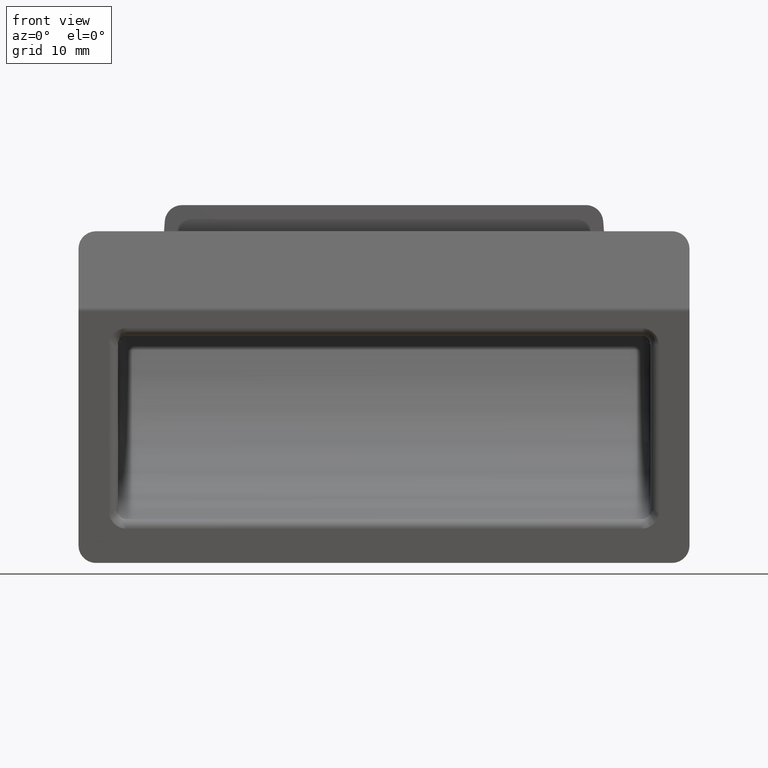
[diagram: clean part render]
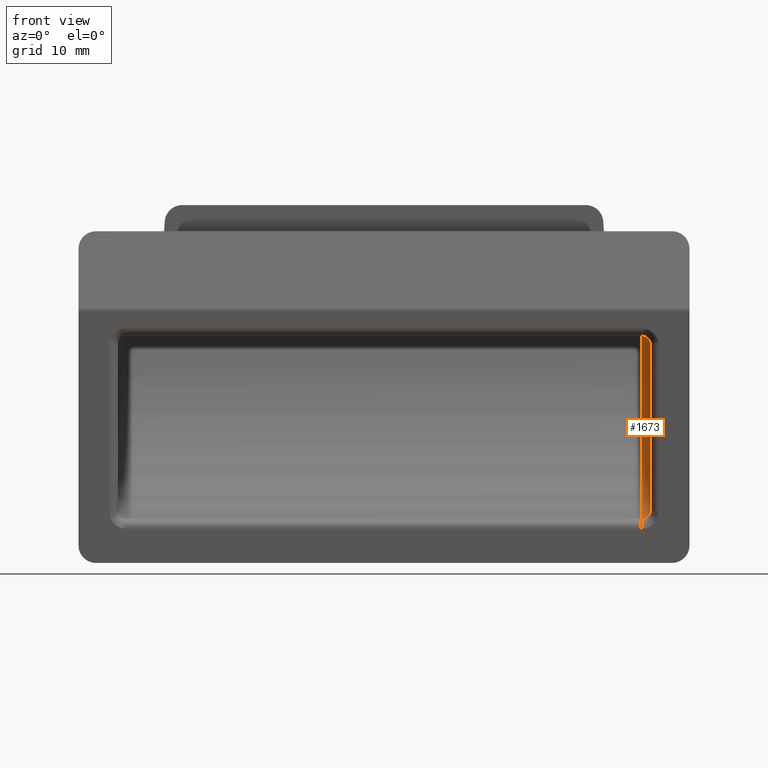
[diagram: same view with one face highlighted and labeled with its STEP entity id]
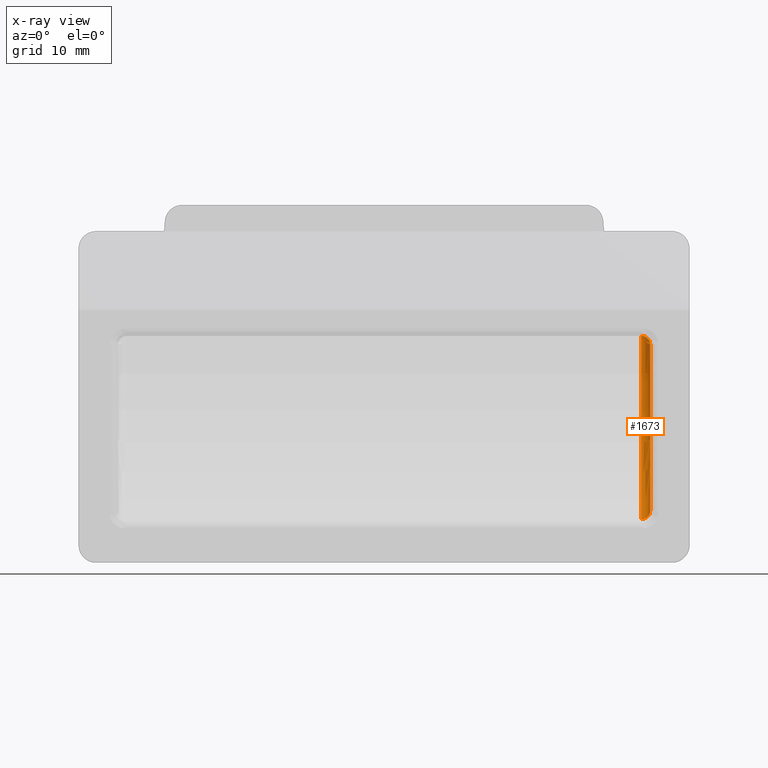
[diagram: x-ray of the same camera — body ghosted, the highlighted face saturated]
A machine part, front view. The second image highlights one B-rep face of the part: STEP entity #1673.
The next image is the same camera in x-ray: the body ghosted, the highlighted face saturated — about 0% of this face is hidden behind the body in this view.
In plain terms, the highlighted toroidal blend (fillet) surface has major radius 28.3282 mm and minor (blend) radius 1 mm.
Its self-contained STEP definition (entity closure, byte-faithful):
#174 = CIRCLE ( 'NONE', #3350, 28.32816273254529800 ) ;
#246 = CARTESIAN_POINT ( 'NONE',  ( 30.50000000000000000, 13.51908140067302200, 5.250000000000000000 ) ) ;
#332 = VERTEX_POINT ( 'NONE', #493 ) ;
#346 = ORIENTED_EDGE ( 'NONE', *, *, #3284, .T. ) ;
#369 = ORIENTED_EDGE ( 'NONE', *, *, #1932, .F. ) ;
#370 = CARTESIAN_POINT ( 'NONE',  ( 30.01020090900654200, -0.03367101190482255800, -14.62018252972382900 ) ) ;
#428 = VERTEX_POINT ( 'NONE', #1266 ) ;
#493 = CARTESIAN_POINT ( 'NONE',  ( 29.50000000000000000, 14.71560498968656100, 6.242930651828519500 ) ) ;
#507 = VERTEX_POINT ( 'NONE', #2026 ) ;
#642 = AXIS2_PLACEMENT_3D ( 'NONE', #2917, #2652, #2156 ) ;
#651 = CARTESIAN_POINT ( 'NONE',  ( 30.30413376355081200, -0.1017712667486603800, -14.35855678462644700 ) ) ;
#729 = FACE_OUTER_BOUND ( 'NONE', #2768, .T. ) ;
#791 = CARTESIAN_POINT ( 'NONE',  ( 29.67627605569255100, 14.70236770115303500, 6.237742102043643700 ) ) ;
#862 = CIRCLE ( 'NONE', #3018, 29.32816273254530200 ) ;
#907 = CARTESIAN_POINT ( 'NONE',  ( 30.47447254613235000, -0.1933309952458673000, -14.00880693099823300 ) ) ;
#909 = EDGE_CURVE ( 'NONE', #332, #1884, #2765, .T. ) ;
#1042 = CARTESIAN_POINT ( 'NONE',  ( 29.90627875288464900, 14.61901895251523900, 6.166800404046995300 ) ) ;
#1108 = EDGE_CURVE ( 'NONE', #1699, #428, #174, .T. ) ;
#1171 = CARTESIAN_POINT ( 'NONE',  ( 30.50000000000000000, -0.2615143702929420000, -13.75000000000000000 ) ) ;
#1266 = CARTESIAN_POINT ( 'NONE',  ( 30.50000000000000000, -0.2615143702929420000, -13.75000000000000000 ) ) ;
#1289 = CARTESIAN_POINT ( 'NONE',  ( 29.50700814093600100, 14.71670921674924100, 6.249975442678719500 ) ) ;
#1303 = CARTESIAN_POINT ( 'NONE',  ( 30.20413648252817800, 14.38765188929557400, 5.970820951716826000 ) ) ;
#1333 = CARTESIAN_POINT ( 'NONE',  ( 29.50000000000000000, -14.24241057784380100, 10.88776258176182000 ) ) ;
#1339 = TOROIDAL_SURFACE ( 'NONE', #642, 28.32816273254529800, 1.000000000000000000 ) ;
#1577 = CARTESIAN_POINT ( 'NONE',  ( 30.41300542795762100, 14.03165344550156000, 5.672575838451984400 ) ) ;
#1612 = DIRECTION ( 'NONE',  ( 0.0000000000000000000, 8.872308973782701400E-016, 1.000000000000000000 ) ) ;
#1627 = CARTESIAN_POINT ( 'NONE',  ( 29.50700814093600100, 14.71670921674924100, 6.249975442678719500 ) ) ;
#1673 = ADVANCED_FACE ( 'NONE', ( #729 ), #1339, .F. ) ;
#1699 = VERTEX_POINT ( 'NONE', #2693 ) ;
#1857 = CARTESIAN_POINT ( 'NONE',  ( 30.50000000000000000, 13.64879352525334800, 5.356027522718891400 ) ) ;
#1884 = VERTEX_POINT ( 'NONE', #1627 ) ;
#1932 = EDGE_CURVE ( 'NONE', #507, #332, #862, .T. ) ;
#1971 = CARTESIAN_POINT ( 'NONE',  ( 29.76621872839327000, -0.007002035910403523600, -14.72295950133618300 ) ) ;
#2026 = CARTESIAN_POINT ( 'NONE',  ( 29.50000000000000000, 1.421085471520200100E-014, -14.75000000000000000 ) ) ;
#2115 = CARTESIAN_POINT ( 'NONE',  ( 29.59249670740630800, 14.71600650110887400, 6.249376312043495800 ) ) ;
#2156 = DIRECTION ( 'NONE',  ( 0.0000000000000000000, 0.0000000000000000000, 1.000000000000000000 ) ) ;
#2213 = DIRECTION ( 'NONE',  ( 0.0000000000000000000, 0.0000000000000000000, 1.000000000000000000 ) ) ;
#2216 = CARTESIAN_POINT ( 'NONE',  ( 29.50000000000000000, 1.421085471520200100E-014, -14.75000000000000000 ) ) ;
#2237 = CARTESIAN_POINT ( 'NONE',  ( 30.12137570008603400, -0.05338694309360667700, -14.54426992209189600 ) ) ;
#2334 = EDGE_CURVE ( 'NONE', #1884, #1699, #2732, .T. ) ;
#2470 = CARTESIAN_POINT ( 'NONE',  ( 29.63431727222825900, 1.420791889900681700E-014, -14.74999999999999800 ) ) ;
#2482 = CARTESIAN_POINT ( 'NONE',  ( 30.37713185952239700, -0.1308465170063250700, -14.24720968585616300 ) ) ;
#2514 = CARTESIAN_POINT ( 'NONE',  ( 29.50700814093600100, 14.71670921674924100, 6.249975442678719500 ) ) ;
#2544 = CARTESIAN_POINT ( 'NONE',  ( 29.50150358612686200, 14.71584728588733200, 6.244441237627911300 ) ) ;
#2553 = CARTESIAN_POINT ( 'NONE',  ( 29.50617568139531600, 14.71658103360270100, 6.249138152100695900 ) ) ;
#2592 = CARTESIAN_POINT ( 'NONE',  ( 29.50534321786868800, 14.71645178711031400, 6.248301027584530800 ) ) ;
#2623 = CARTESIAN_POINT ( 'NONE',  ( 29.83464230229888900, 14.65322255245954600, 6.195897582971978700 ) ) ;
#2652 = DIRECTION ( 'NONE',  ( -1.000000000000000000, 0.0000000000000000000, 0.0000000000000000000 ) ) ;
#2657 = ORIENTED_EDGE ( 'NONE', *, *, #909, .F. ) ;
#2693 = CARTESIAN_POINT ( 'NONE',  ( 30.50000000000000000, 13.51908140067302200, 5.250000000000000000 ) ) ;
#2732 = B_SPLINE_CURVE_WITH_KNOTS ( 'NONE', 3,
 ( #1289, #2115, #791, #2623, #1042, #2885, #1303, #3141, #1577, #3423, #1857, #246 ),
 .UNSPECIFIED., .F., .F.,
 ( 4, 2, 2, 2, 2, 4 ),
 ( 0.002019333373468657800, 0.002270631614614360700, 0.002521929855760064000, 0.003024526338051477900, 0.003527122820342891400, 0.004029719302634305000 ),
 .UNSPECIFIED. ) ;
#2748 = CARTESIAN_POINT ( 'NONE',  ( 30.50000000000000000, -14.24241057784380100, 10.88776258176182000 ) ) ;
#2751 = CARTESIAN_POINT ( 'NONE',  ( 30.50000000000000400, -0.2277294874498660400, -13.87800285363857500 ) ) ;
#2753 = CARTESIAN_POINT ( 'NONE',  ( 29.50451075233879900, 14.71632147762290000, 6.247464071255310000 ) ) ;
#2754 = B_SPLINE_CURVE_WITH_KNOTS ( 'NONE', 3,
 ( #2216, #2470, #1971, #370, #2237, #651, #2482, #907, #2751, #1171 ),
 .UNSPECIFIED., .F., .F.,
 ( 4, 2, 2, 2, 4 ),
 ( 0.0000000000000000000, 0.0003971555693627828900, 0.0007943111387255657800, 0.001191466708088348800, 0.001588622277451131600 ),
 .UNSPECIFIED. ) ;
#2759 = CARTESIAN_POINT ( 'NONE',  ( 29.50000000000000000, 14.71560498968656100, 6.242930651828519500 ) ) ;
#2765 = B_SPLINE_CURVE_WITH_KNOTS ( 'NONE', 3,
 ( #2759, #2544, #3032, #2753, #2592, #2553, #2514 ),
 .UNSPECIFIED., .F., .F.,
 ( 4, 3, 4 ),
 ( -6.435225973042828400E-006, 0.0000000000000000000, 3.562903010307657500E-006 ),
 .UNSPECIFIED. ) ;
#2768 = EDGE_LOOP ( 'NONE', ( #346, #3316, #3220, #2657, #369 ) ) ;
#2799 = DIRECTION ( 'NONE',  ( -1.000000000000000000, 0.0000000000000000000, 0.0000000000000000000 ) ) ;
#2885 = CARTESIAN_POINT ( 'NONE',  ( 30.10391996241748600, 14.49425506405498400, 6.060939148523944600 ) ) ;
#2917 = CARTESIAN_POINT ( 'NONE',  ( 29.50000000000000000, -14.24241057784380100, 10.88776258176182000 ) ) ;
#3018 = AXIS2_PLACEMENT_3D ( 'NONE', #1333, #3169, #1612 ) ;
#3032 = CARTESIAN_POINT ( 'NONE',  ( 29.50300717399723600, 14.71608611589807200, 6.245952381744730900 ) ) ;
#3141 = CARTESIAN_POINT ( 'NONE',  ( 30.35893022308820800, 14.15666464250277400, 5.776905971048672800 ) ) ;
#3169 = DIRECTION ( 'NONE',  ( 1.000000000000000000, -0.0000000000000000000, -0.0000000000000000000 ) ) ;
#3220 = ORIENTED_EDGE ( 'NONE', *, *, #2334, .F. ) ;
#3284 = EDGE_CURVE ( 'NONE', #507, #428, #2754, .T. ) ;
#3316 = ORIENTED_EDGE ( 'NONE', *, *, #1108, .F. ) ;
#3350 = AXIS2_PLACEMENT_3D ( 'NONE', #2748, #2799, #2213 ) ;
#3423 = CARTESIAN_POINT ( 'NONE',  ( 30.48312456312186900, 13.77945680796260300, 5.463577489707874200 ) ) ;